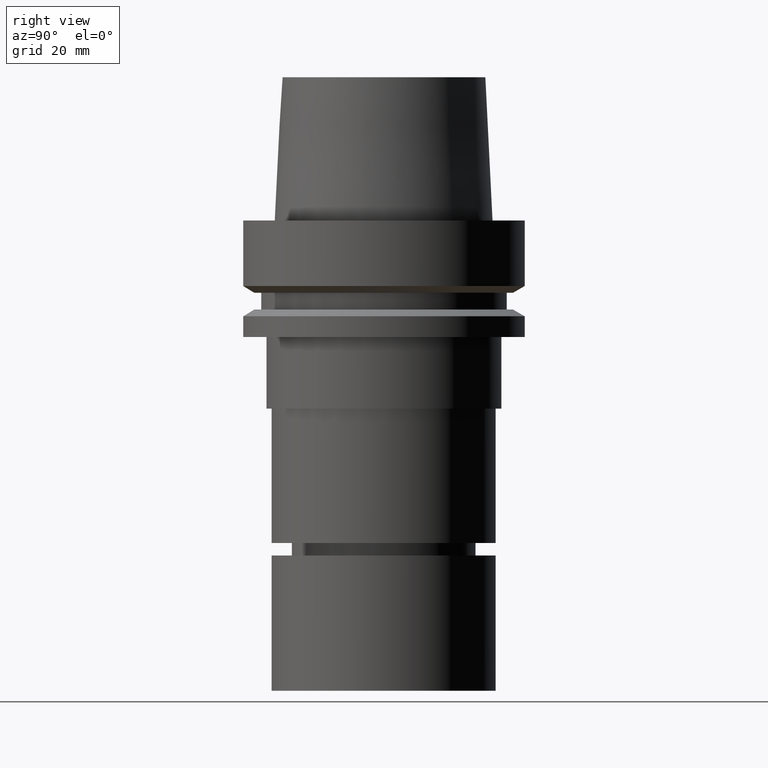
[diagram: clean part render]
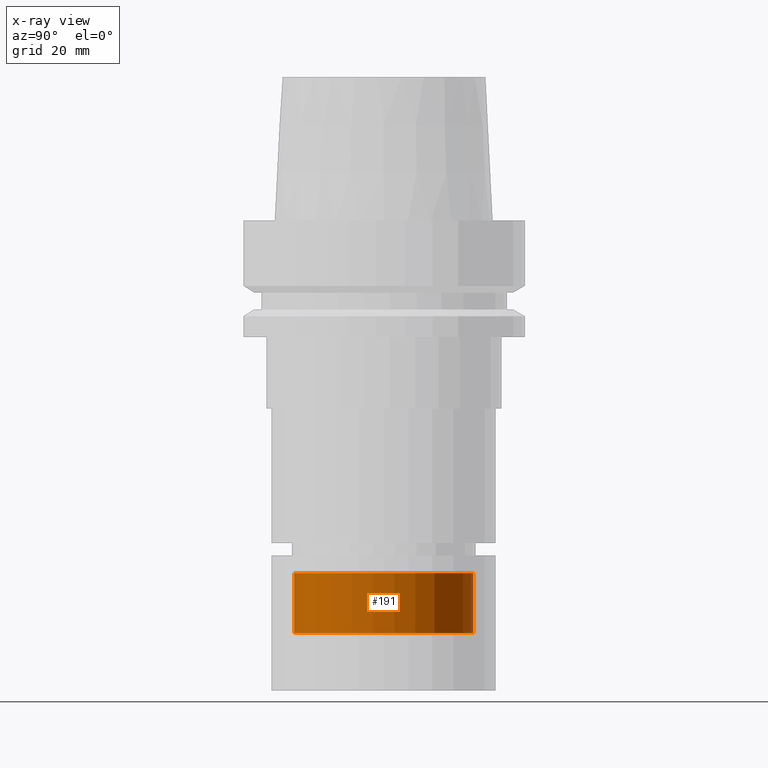
[diagram: x-ray — body ghosted, one internal face saturated and labeled with its STEP entity id]
A machine part, right view, then the same camera in x-ray: the body is ghosted and one INTERNAL B-rep face — a face not visible from any outside direction — is saturated and labeled: STEP entity #191.
In plain terms, the highlighted cylindrical surface (bore or boss wall) has radius 20 mm, axis along (-0, -0, 1).
Its self-contained STEP definition (entity closure, byte-faithful):
#84=EDGE_CURVE('Unnamed[1]',#221,#221,#222,.T.);
#186=EDGE_CURVE('Unnamed[1]',#379,#379,#380,.T.);
#191=ADVANCED_FACE('Unnamed[1]',(#386,#387),#388,.T.);
#221=VERTEX_POINT('',#414);
#222=CIRCLE('',#415,20.0);
#379=VERTEX_POINT('',#611);
#380=CIRCLE('',#612,20.0000000000001);
#386=FACE_BOUND('',#620,.T.);
#387=FACE_BOUND('',#621,.T.);
#388=CYLINDRICAL_SURFACE('',#622,20.0);
#414=CARTESIAN_POINT('',(4.82088933817907E-015,20.0,-78.73109767707));
#415=AXIS2_PLACEMENT_3D('',#634,#635,#636);
#611=CARTESIAN_POINT('',(5.63917667973277E-015,20.0000000000001,-92.0947441116734));
#612=AXIS2_PLACEMENT_3D('',#811,#812,#813);
#620=EDGE_LOOP('',(#818));
#621=EDGE_LOOP('',(#819));
#622=AXIS2_PLACEMENT_3D('',#820,#821,#822);
#634=CARTESIAN_POINT('',(4.82088933817907E-015,9.64177867635814E-015,-78.73109767707));
#635=DIRECTION('',(-6.12323399573677E-017,-1.22464679914735E-016,1.0));
#636=DIRECTION('',(-1.23259516440783E-032,1.0,1.22464679914735E-016));
#811=CARTESIAN_POINT('',(5.63917667973277E-015,1.12783533594655E-014,-92.0947441116734));
#812=DIRECTION('',(-6.12323399573677E-017,-1.22464679914735E-016,1.0));
#813=DIRECTION('',(-1.23259516440783E-032,1.0,1.22464679914735E-016));
#818=ORIENTED_EDGE('',*,*,#84,.F.);
#819=ORIENTED_EDGE('',*,*,#186,.T.);
#820=CARTESIAN_POINT('',(5.23003300895592E-015,1.04600660179118E-014,-85.4129208943717));
#821=DIRECTION('',(-6.12323399573677E-017,-1.22464679914735E-016,1.0));
#822=DIRECTION('',(-1.23259516440783E-032,1.0,1.22464679914735E-016));